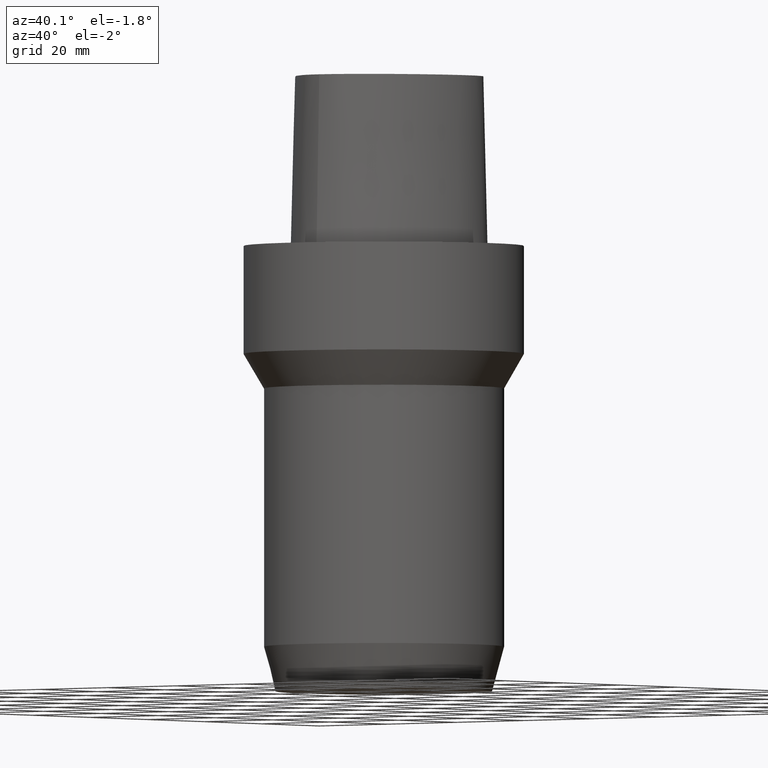
[diagram: clean part render]
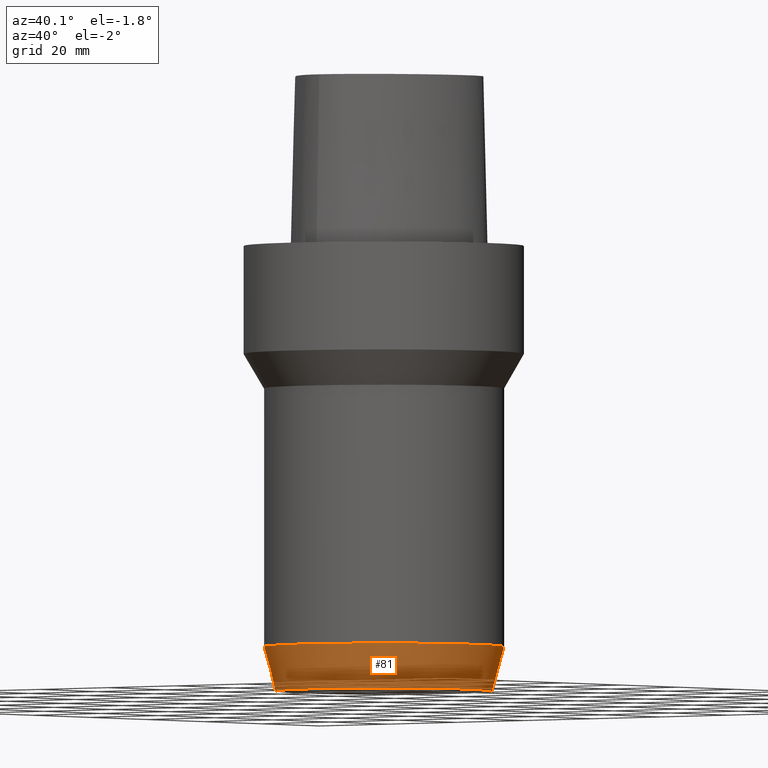
[diagram: same view with one face highlighted and labeled with its STEP entity id]
A machine part, auxiliary view. The second image highlights one B-rep face of the part: STEP entity #81.
In plain terms, the highlighted conical surface has half-angle 15 deg.
Its self-contained STEP definition (entity closure, byte-faithful):
#81=ADVANCED_FACE('',(#99,#100),#101,.T.);
#99=FACE_BOUND('',#262,.T.);
#100=FACE_BOUND('',#263,.T.);
#101=CONICAL_SURFACE('',#264,25.6602540369655,0.261799387417658);
#262=EDGE_LOOP('',(#304));
#263=EDGE_LOOP('',(#305));
#264=AXIS2_PLACEMENT_3D('',#306,#307,#308);
#304=ORIENTED_EDGE('',*,*,#334,.F.);
#305=ORIENTED_EDGE('',*,*,#333,.T.);
#306=CARTESIAN_POINT('',(5.81707229528189E-015,1.16341445905638E-014,-94.99999998909));
#307=DIRECTION('',(-6.12323399573677E-017,-1.22464679914735E-016,1.0));
#308=DIRECTION('',(-1.23259516440783E-032,1.0,1.22464679914735E-016));
#333=EDGE_CURVE('',#352,#352,#353,.T.);
#334=EDGE_CURVE('',#354,#354,#355,.T.);
#352=VERTEX_POINT('',#441);
#353=CIRCLE('',#442,24.320508073931);
#354=VERTEX_POINT('',#443);
#355=CIRCLE('',#444,27.0);
#441=CARTESIAN_POINT('',(6.12323399573677E-015,24.320508073931,-100.0));
#442=AXIS2_PLACEMENT_3D('',#458,#459,#460);
#443=CARTESIAN_POINT('',(5.51091059482701E-015,27.0,-89.9999999781801));
#444=AXIS2_PLACEMENT_3D('',#461,#462,#463);
#458=CARTESIAN_POINT('',(6.12323399573677E-015,1.22464679914735E-014,-100.0));
#459=DIRECTION('',(-6.12323399573677E-017,-1.22464679914735E-016,1.0));
#460=DIRECTION('',(-1.23259516440783E-032,1.0,1.22464679914735E-016));
#461=CARTESIAN_POINT('',(5.51091059482701E-015,1.1021821189654E-014,-89.9999999781801));
#462=DIRECTION('',(-6.12323399573677E-017,-1.22464679914735E-016,1.0));
#463=DIRECTION('',(-1.23259516440783E-032,1.0,1.22464679914735E-016));